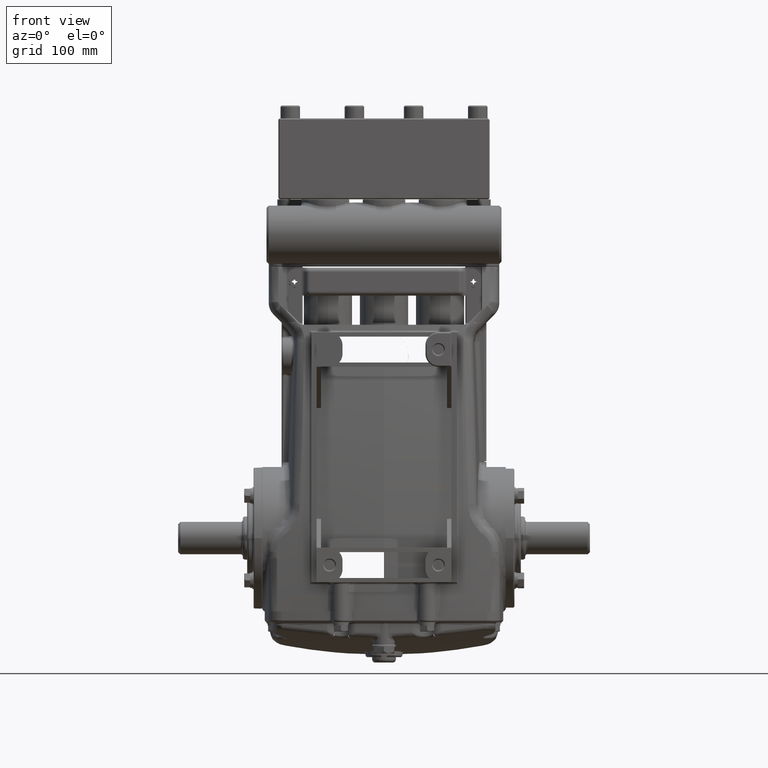
[diagram: clean part render]
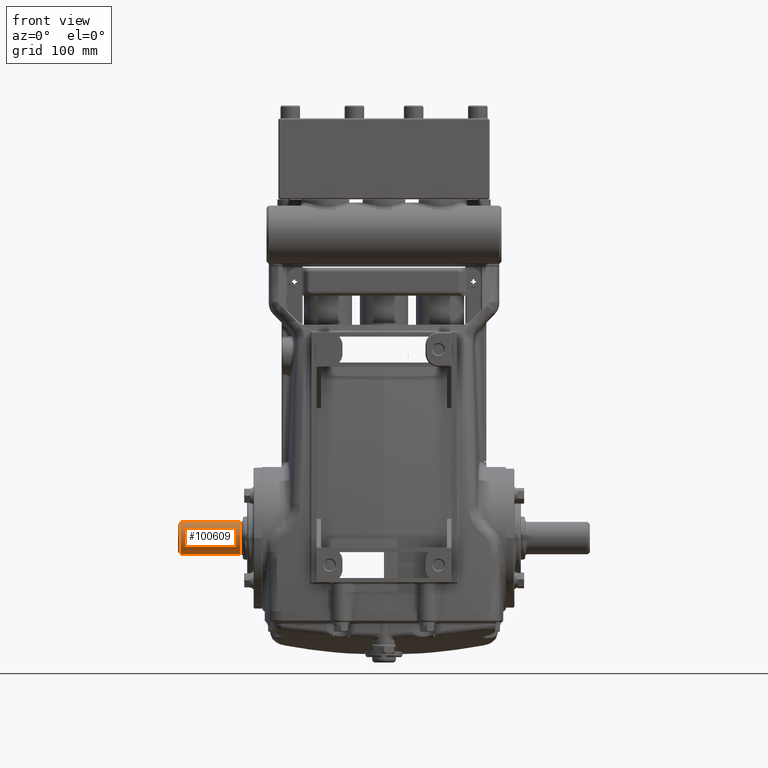
[diagram: same view with one face highlighted and labeled with its STEP entity id]
A machine part, front view. The second image highlights one B-rep face of the part: STEP entity #100609.
In plain terms, the highlighted cylindrical surface (edge-blend (fillet) strip) has radius 15 mm, axis along (1, -0, -0).
Its self-contained STEP definition (entity closure, byte-faithful):
#261 = CARTESIAN_POINT ( 'NONE',  ( -5.236220472440945350, 0.000000000000000000, 0.000000000000000000 ) ) ;
#3979 = FACE_OUTER_BOUND ( 'NONE', #86275, .T. ) ;
#4753 = DIRECTION ( 'NONE',  ( 1.000000000000000000, -0.000000000000000000, -0.000000000000000000 ) ) ;
#6560 = DIRECTION ( 'NONE',  ( -1.000000000000000000, -0.000000000000000000, -0.000000000000000000 ) ) ;
#12469 = CIRCLE ( 'NONE', #92964, 0.5905511811023621549 ) ;
#14839 = DIRECTION ( 'NONE',  ( 1.000000000000000000, -0.000000000000000000, -0.000000000000000000 ) ) ;
#17703 = CYLINDRICAL_SURFACE ( 'NONE', #19722, 0.5905511811023621549 ) ;
#19722 = AXIS2_PLACEMENT_3D ( 'NONE', #42379, #36056, #90127 ) ;
#20279 = CARTESIAN_POINT ( 'NONE',  ( -7.440944881889764773, 0.000000000000000000, 0.000000000000000000 ) ) ;
#22091 = CARTESIAN_POINT ( 'NONE',  ( -7.519685039370078705, 0.000000000000000000, -0.5905511811023621549 ) ) ;
#22203 = VERTEX_POINT ( 'NONE', #103120 ) ;
#28505 = VERTEX_POINT ( 'NONE', #39547 ) ;
#28736 = EDGE_CURVE ( 'NONE', #100602, #28505, #44689, .T. ) ;
#30127 = CARTESIAN_POINT ( 'NONE',  ( -7.519685039370078705, 7.232166136696967594E-17, 0.5905511811023621549 ) ) ;
#30326 = EDGE_CURVE ( 'NONE', #80238, #100602, #12469, .T. ) ;
#36056 = DIRECTION ( 'NONE',  ( 1.000000000000000000, -0.000000000000000000, -0.000000000000000000 ) ) ;
#38632 = DIRECTION ( 'NONE',  ( 0.000000000000000000, 0.000000000000000000, -1.000000000000000000 ) ) ;
#39349 = ORIENTED_EDGE ( 'NONE', *, *, #44921, .F. ) ;
#39547 = CARTESIAN_POINT ( 'NONE',  ( -5.236220472440945350, 0.000000000000000000, -0.5905511811023621549 ) ) ;
#42379 = CARTESIAN_POINT ( 'NONE',  ( -7.519685039370078705, 0.000000000000000000, 0.000000000000000000 ) ) ;
#44689 = LINE ( 'NONE', #22091, #52501 ) ;
#44921 = EDGE_CURVE ( 'NONE', #80238, #22203, #95166, .T. ) ;
#44952 = DIRECTION ( 'NONE',  ( 1.000000000000000000, 0.000000000000000000, 0.000000000000000000 ) ) ;
#45393 = EDGE_CURVE ( 'NONE', #28505, #22203, #78819, .T. ) ;
#52501 = VECTOR ( 'NONE', #4753, 39.37007874015748143 ) ;
#56654 = ORIENTED_EDGE ( 'NONE', *, *, #28736, .T. ) ;
#60702 = DIRECTION ( 'NONE',  ( 0.000000000000000000, 0.000000000000000000, 1.000000000000000000 ) ) ;
#67123 = AXIS2_PLACEMENT_3D ( 'NONE', #261, #6560, #38632 ) ;
#74231 = ORIENTED_EDGE ( 'NONE', *, *, #30326, .T. ) ;
#78742 = VECTOR ( 'NONE', #14839, 39.37007874015748143 ) ;
#78819 = CIRCLE ( 'NONE', #67123, 0.5905511811023621549 ) ;
#80238 = VERTEX_POINT ( 'NONE', #94771 ) ;
#81686 = ORIENTED_EDGE ( 'NONE', *, *, #45393, .T. ) ;
#86275 = EDGE_LOOP ( 'NONE', ( #39349, #74231, #56654, #81686 ) ) ;
#90127 = DIRECTION ( 'NONE',  ( 0.000000000000000000, 0.000000000000000000, -1.000000000000000000 ) ) ;
#90643 = CARTESIAN_POINT ( 'NONE',  ( -7.440944881889764773, 0.000000000000000000, -0.5905511811023621549 ) ) ;
#92964 = AXIS2_PLACEMENT_3D ( 'NONE', #20279, #44952, #60702 ) ;
#94771 = CARTESIAN_POINT ( 'NONE',  ( -7.440944881889764773, 7.232166136696967594E-17, 0.5905511811023621549 ) ) ;
#95166 = LINE ( 'NONE', #30127, #78742 ) ;
#100602 = VERTEX_POINT ( 'NONE', #90643 ) ;
#100609 = ADVANCED_FACE ( 'NONE', ( #3979 ), #17703, .T. ) ;
#103120 = CARTESIAN_POINT ( 'NONE',  ( -5.236220472440945350, 7.714310545810099671E-17, 0.5905511811023621549 ) ) ;